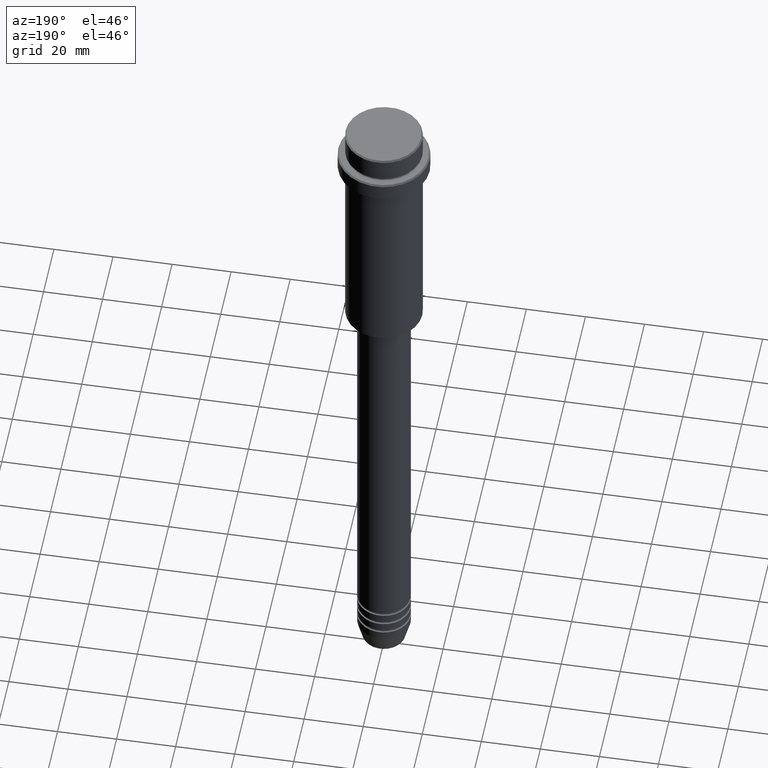
[diagram: clean part render]
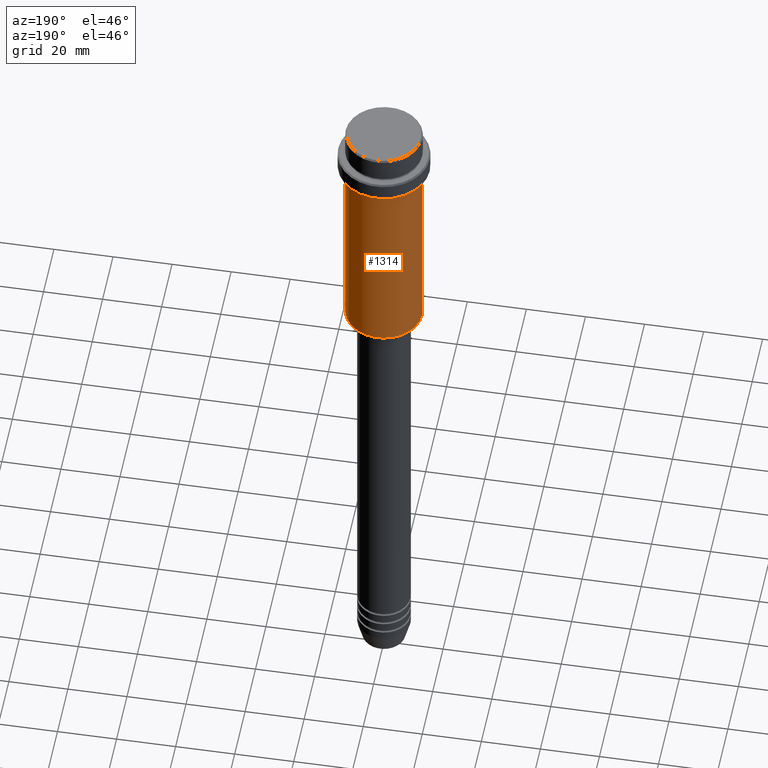
[diagram: same view with one face highlighted and labeled with its STEP entity id]
A machine part, auxiliary view. The second image highlights one B-rep face of the part: STEP entity #1314.
In plain terms, the highlighted cylindrical surface (partial cylindrical patch) has radius 13 mm, axis along (-0, -0, 1).
Its self-contained STEP definition (entity closure, byte-faithful):
#2 = EDGE_LOOP ( 'NONE', ( #1243, #1304, #1332, #1033 ) ) ;
#61 = CIRCLE ( 'NONE', #794, 13.00000000000000000 ) ;
#147 = CARTESIAN_POINT ( 'NONE',  ( 13.00000000000000000, 0.000000000000000000, -16.00000000000000000 ) ) ;
#176 = AXIS2_PLACEMENT_3D ( 'NONE', #611, #1277, #1269 ) ;
#183 = VERTEX_POINT ( 'NONE', #1215 ) ;
#221 = VECTOR ( 'NONE', #870, 1000.000000000000000 ) ;
#269 = DIRECTION ( 'NONE',  ( -0.000000000000000000, -0.000000000000000000, 1.000000000000000000 ) ) ;
#297 = DIRECTION ( 'NONE',  ( 1.000000000000000000, 0.000000000000000000, 0.000000000000000000 ) ) ;
#305 = AXIS2_PLACEMENT_3D ( 'NONE', #1253, #786, #481 ) ;
#431 = CARTESIAN_POINT ( 'NONE',  ( -13.00000000000000000, 1.592040838891559095E-15, 0.000000000000000000 ) ) ;
#435 = CARTESIAN_POINT ( 'NONE',  ( 13.00000000000000000, 0.000000000000000000, -84.50000000000001421 ) ) ;
#481 = DIRECTION ( 'NONE',  ( -1.000000000000000000, 0.000000000000000000, 0.000000000000000000 ) ) ;
#492 = VECTOR ( 'NONE', #269, 1000.000000000000000 ) ;
#510 = VERTEX_POINT ( 'NONE', #638 ) ;
#520 = FACE_OUTER_BOUND ( 'NONE', #2, .T. ) ;
#611 = CARTESIAN_POINT ( 'NONE',  ( 0.000000000000000000, 0.000000000000000000, 0.000000000000000000 ) ) ;
#618 = EDGE_CURVE ( 'NONE', #183, #510, #630, .T. ) ;
#624 = CYLINDRICAL_SURFACE ( 'NONE', #176, 13.00000000000000000 ) ;
#630 = LINE ( 'NONE', #431, #221 ) ;
#638 = CARTESIAN_POINT ( 'NONE',  ( -13.00000000000000000, 1.592040838891559095E-15, -16.00000000000000000 ) ) ;
#691 = EDGE_CURVE ( 'NONE', #1026, #183, #1248, .T. ) ;
#699 = VERTEX_POINT ( 'NONE', #147 ) ;
#738 = CARTESIAN_POINT ( 'NONE',  ( 0.000000000000000000, 0.000000000000000000, -16.00000000000000000 ) ) ;
#747 = EDGE_CURVE ( 'NONE', #1026, #699, #1048, .T. ) ;
#786 = DIRECTION ( 'NONE',  ( -0.000000000000000000, -0.000000000000000000, 1.000000000000000000 ) ) ;
#794 = AXIS2_PLACEMENT_3D ( 'NONE', #738, #967, #297 ) ;
#809 = CARTESIAN_POINT ( 'NONE',  ( 13.00000000000000000, 0.000000000000000000, 0.000000000000000000 ) ) ;
#870 = DIRECTION ( 'NONE',  ( -0.000000000000000000, -0.000000000000000000, 1.000000000000000000 ) ) ;
#967 = DIRECTION ( 'NONE',  ( -0.000000000000000000, -0.000000000000000000, 1.000000000000000000 ) ) ;
#1026 = VERTEX_POINT ( 'NONE', #435 ) ;
#1033 = ORIENTED_EDGE ( 'NONE', *, *, #747, .F. ) ;
#1048 = LINE ( 'NONE', #809, #492 ) ;
#1215 = CARTESIAN_POINT ( 'NONE',  ( -13.00000000000000000, 1.592040838891559095E-15, -84.50000000000001421 ) ) ;
#1243 = ORIENTED_EDGE ( 'NONE', *, *, #691, .T. ) ;
#1248 = CIRCLE ( 'NONE', #305, 13.00000000000000000 ) ;
#1253 = CARTESIAN_POINT ( 'NONE',  ( 0.000000000000000000, 0.000000000000000000, -84.50000000000001421 ) ) ;
#1269 = DIRECTION ( 'NONE',  ( 1.000000000000000000, 0.000000000000000000, 0.000000000000000000 ) ) ;
#1277 = DIRECTION ( 'NONE',  ( -0.000000000000000000, -0.000000000000000000, 1.000000000000000000 ) ) ;
#1295 = EDGE_CURVE ( 'NONE', #699, #510, #61, .T. ) ;
#1304 = ORIENTED_EDGE ( 'NONE', *, *, #618, .T. ) ;
#1314 = ADVANCED_FACE ( 'NONE', ( #520 ), #624, .T. ) ;
#1332 = ORIENTED_EDGE ( 'NONE', *, *, #1295, .F. ) ;